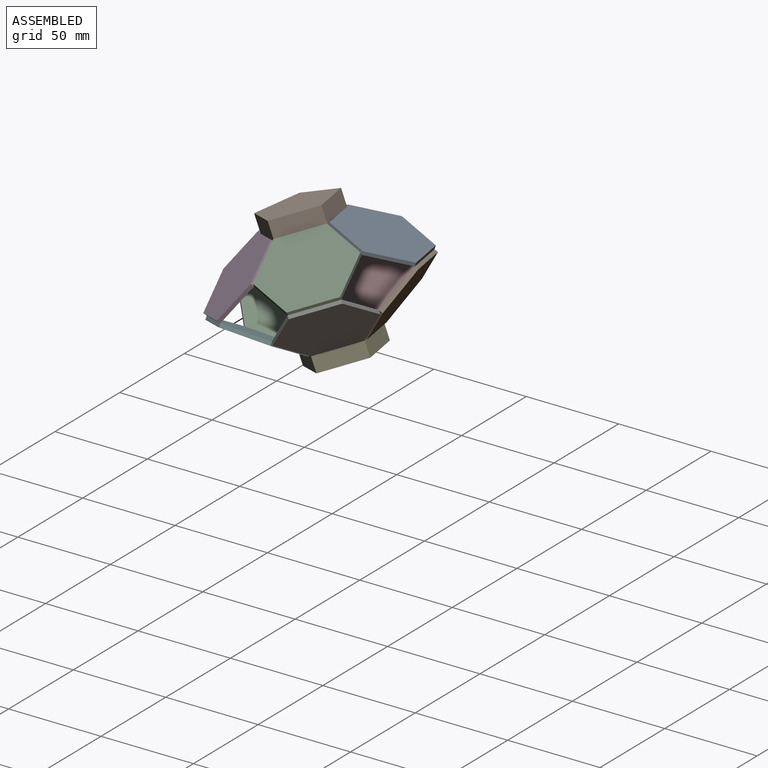
[diagram: assembled view]
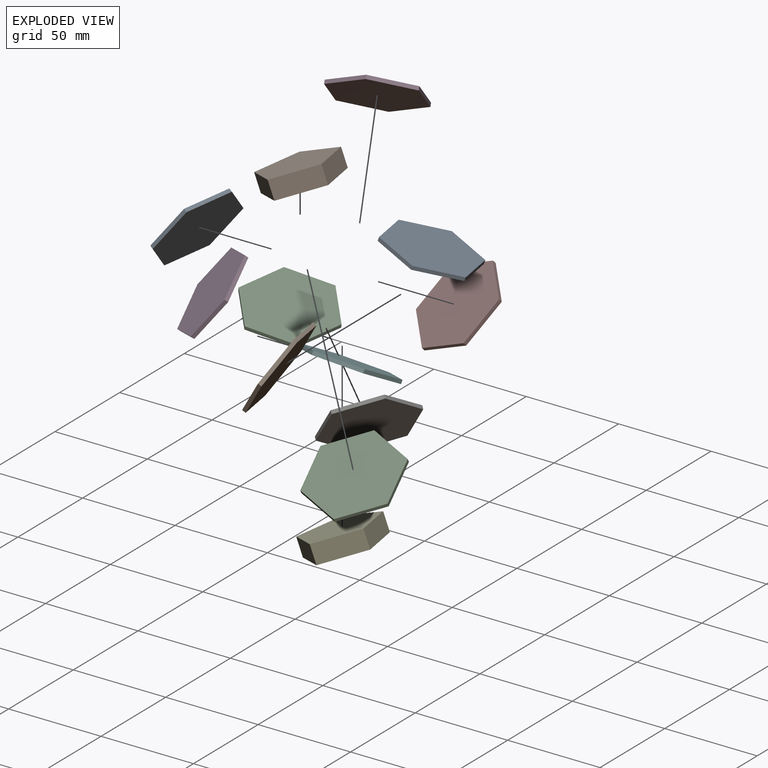
[diagram: exploded view]
GUIDED TOUR — MATED ASSEMBLY (Onshape document f35db0a1c7ccfeabc89d27fe, AutoMate assembly f35db0a1c7ccfeabc89d27fe_0e52c982a3482f39fbb780fa_8ddf06bdcfd4d379180f7259_default)

This assembly has 12 components, labeled P0..P11 below (a component is one placed occurrence of a part; the same part can appear more than once), held together by 13 mates. A mate is a constraint between two components; its type names the relative motion it leaves free:
  BALL — leaves all rotation about the listed point free (a ball joint),
  CYLINDRICAL — leaves both rotation about and translation along the listed axis free,
  REVOLUTE — leaves rotation about the listed axis free (a hinge).
Axis/direction vectors are unit vectors and 'through' points are millimeter coordinates, both in the assembly's world frame.

MATES
  1. BALL "Ball 1": P6 <-> P2, direction (-0.600, 0.505, 0.620) through (41.68, -43.90, -7.64) mm
  2. BALL "Ball 3": P11 <-> P5, direction (0.729, -0.623, 0.282) through (4.02, -42.10, -22.28) mm
  3. CYLINDRICAL "Cylindrical 4": P6 <-> P5, axis (0.225, 0.851, -0.475) through (30.69, -25.77, -33.02) mm
  4. REVOLUTE "Revolute 1": P1 <-> P3, axis (-0.931, 0.044, -0.362) through (16.01, 23.19, 10.73) mm
  5. BALL "Ball 4": P3 <-> P7, direction (-0.263, 0.605, 0.752) through (38.57, 57.06, -8.62) mm
  6. CYLINDRICAL "Cylindrical 7": P9 <-> P6, axis (-0.552, 0.300, -0.778) through (59.83, -5.10, -21.64) mm
  7. CYLINDRICAL "Cylindrical 3": P10 <-> P5, axis (-0.955, -0.228, 0.192) through (3.34, -2.41, -43.61) mm
  8. CYLINDRICAL "Cylindrical 8": P4 <-> P7, axis (0.931, -0.044, 0.362) through (35.07, 23.30, -38.26) mm
  9. CYLINDRICAL "Cylindrical 1": P10 <-> P4, axis (-0.326, -0.936, -0.129) through (19.35, 12.15, -44.40) mm
  10. CYLINDRICAL "Cylindrical 6": P9 <-> P4, axis (-0.249, 0.964, -0.095) through (49.82, 10.70, -32.55) mm
  11. BALL "Ball 2": P2 <-> P6, direction (-0.024, 0.508, -0.861) through (61.11, -30.11, -0.05) mm
  12. CYLINDRICAL "Cylindrical 5": P6 <-> P4, axis (0.777, 0.551, 0.304) through (43.22, -8.24, -35.16) mm
  13. CYLINDRICAL "Cylindrical 2": P5 <-> P4, axis (0.729, -0.623, 0.282) through (24.39, -7.35, -42.49) mm

ASSEMBLY ORDER
  1. P10 — the base component [order verified]
  2. P0 [order verified]
  3. P5 [order verified]
  4. P11 [order verified]
  5. P2 [order verified]
  6. P3 [order verified]
  7. P8 [order verified]
  8. P9 [order verified]
  9. P6 [order verified]
  10. P7 [order verified]
  11. P1 [order verified]
  12. P4 [order verified]
Order-tag legend:
  [order verified] — this step's position reverses a verified removal order: the component was checked to insert without passing through the ones already placed.

Of the 12 components, 12 carry the full construction recipe — the FeatureScript program that regenerates the part's solid from scratch; the rest are supplied as boundary geometry only.
Each toured component is shown spotlighted twice — in the assembled view, then in the exploded view, where a leader line traces a displaced component back to its assembled socket (saturated green if recipe-attached, orange if geometry-only; every other component desaturated gray) — followed by its recipe or geometry summary and the mates that hold it.
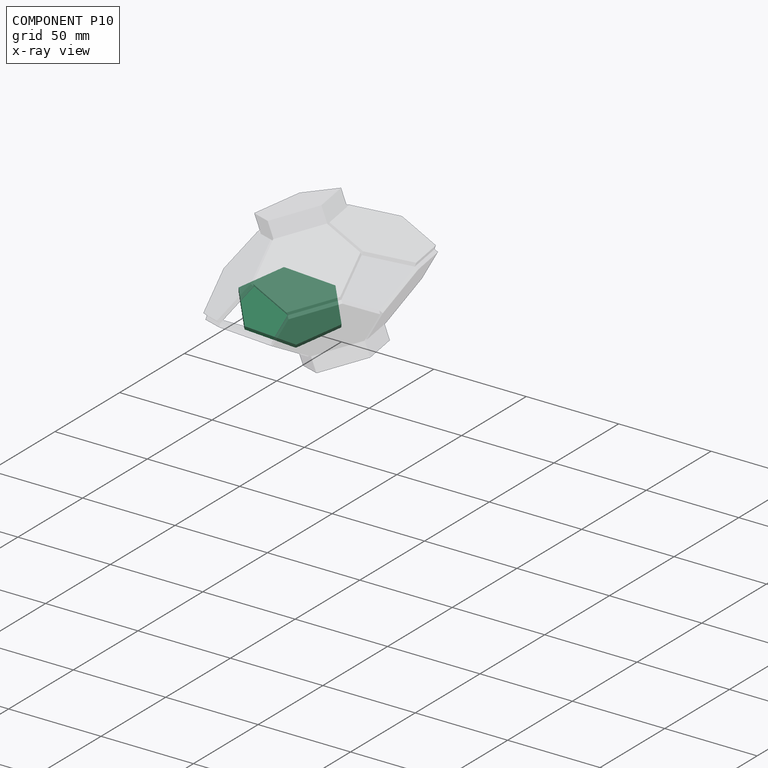
[diagram: component P10 — x-ray view]
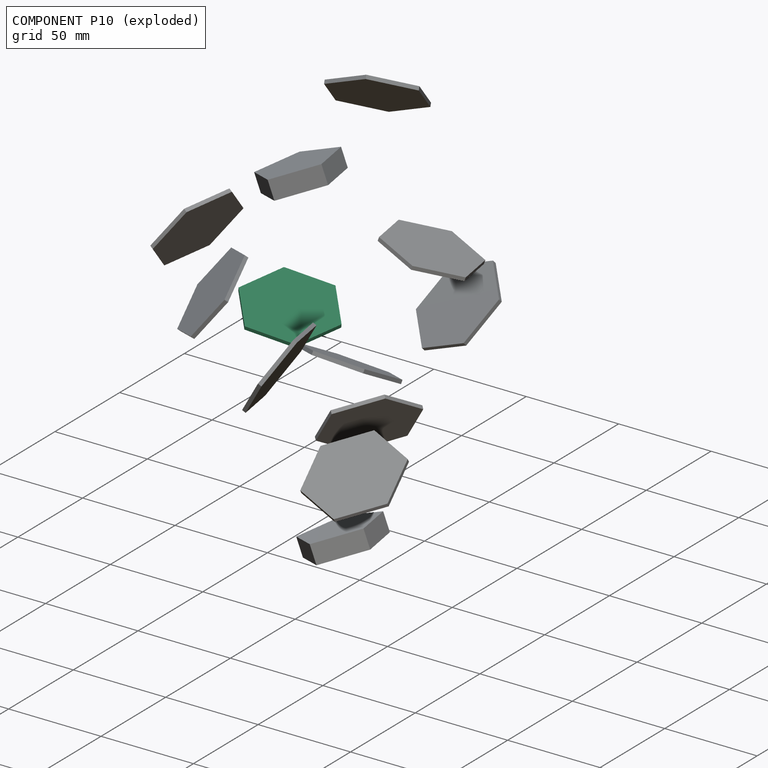
[diagram: component P10 — exploded]
COMPONENT P10 — same part as P0 (CADFS 00968637); its construction recipe is shown at P0.
Held by: CYLINDRICAL mate "Cylindrical 3" to P5; CYLINDRICAL mate "Cylindrical 1" to P4.
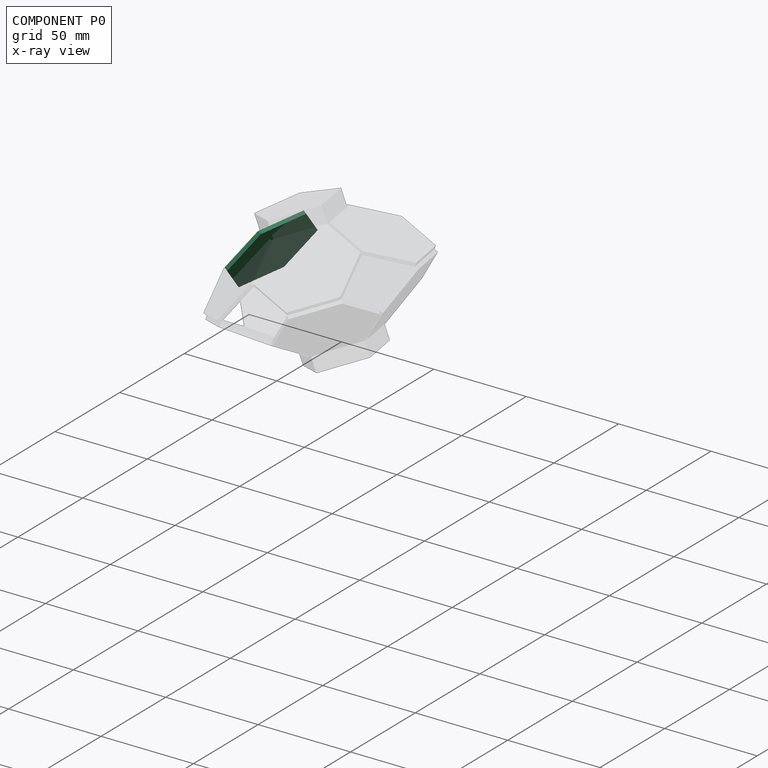
[diagram: component P0 — x-ray view]
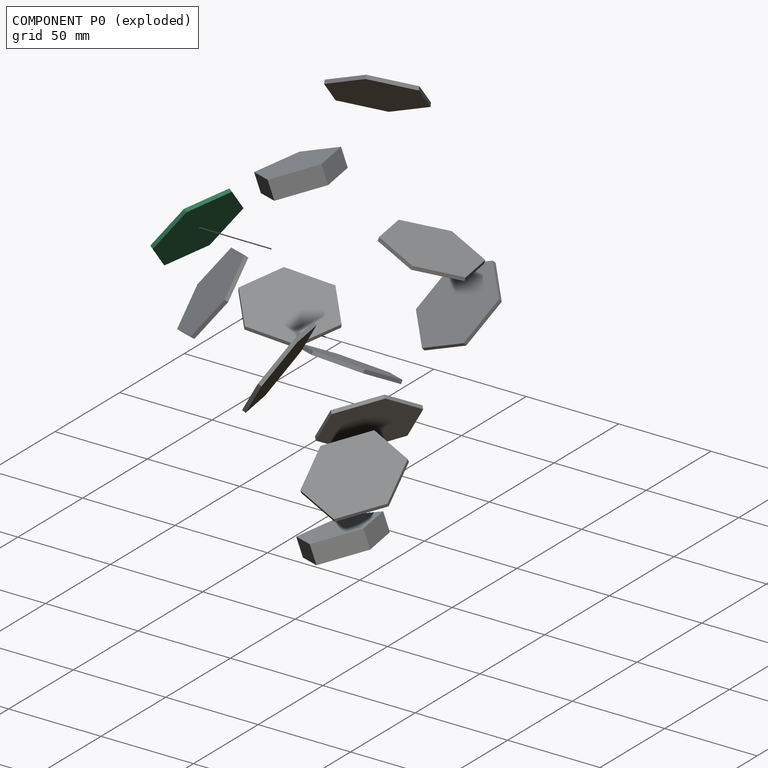
[diagram: component P0 — exploded]
COMPONENT P0 — recipe-attached (CADFS 00968637, mesh-verified: the recipe's output STEP matches this component's geometry to below the mesh-comparison resolution (tessellation chordal tolerance ~0.0993 mm)).
Held by: no mates (free).
Construction recipe (FeatureScript — the CAD program that rebuilds this solid; sketch coordinates are in the units given by the * unit suffixes, e.g. mm):

FeatureScript 1511;
import(path : "onshape/std/geometry.fs", version : "1511.0");
import(path : "onshape/std/common.fs", version : "1511.0");
const mm = millimeter;
const VERTEX = EntityType.VERTEX;
const EDGE = EntityType.EDGE;
const FACE = EntityType.FACE;
const BODY = EntityType.BODY;
function v(x, y){return vector(x, y);}
function OD(order){return orderDisambiguation(order);}
function OSD(set){return originalSetDisambiguation(set);}
function TD(topology){return topologyDisambiguation(topology);}
function TDD(query){return trueDependencyDisambiguation(query);}
function sQuery(a, b, c) {return sketchEntityQuery(a, b, c);}

annotation { "Feature Type Name" : "Feature", "Feature Type Description" : "" }
export const myFeature = defineFeature(function(context is Context, id is Id, definition is map)
    precondition{}
    {
        {
            var Q0;
            Q0=qCreatedBy(makeId("Top.planeOp"),FACE);
            var sketch = newSketch(context, id + "F0", { "sketchPlane" : qUnion([Q0])});
            skCircle(sketch, "E0.cCircle", {"center": v(0, 0) * mm, "radius": 25 * mm, "construction": true});
            skLineSegment(sketch, "E0.0", {"start": v(25, 0) * mm, "end": v(12.5, -21.65) * mm});
            skLineSegment(sketch, "E0.1", {"start": v(12.5, -21.65) * mm, "end": v(-12.5, -21.65) * mm});
            skLineSegment(sketch, "E0.2", {"start": v(-12.5, -21.65) * mm, "end": v(-25, 0) * mm});
            skLineSegment(sketch, "E0.3", {"start": v(-25, 0) * mm, "end": v(-12.5, 21.65) * mm});
            skLineSegment(sketch, "E0.4", {"start": v(-12.5, 21.65) * mm, "end": v(12.5, 21.65) * mm});
            skLineSegment(sketch, "E0.5", {"start": v(12.5, 21.65) * mm, "end": v(25, 0) * mm});
            skSolve(sketch);
        }
        {
            var Q0;
            Q0=makeQuery(id+"F0.imprint","IMPRINT",FACE,{"disambiguationData":[TD([[makeQuery(id+"F0.imprint","IMPRINT",EDGE,{"derivedFrom":sQuery(id+"F0.wireOp",EDGE,"E0.0")}),-1.0]])]});
            extrude(context, id + "F1", {"entities" : qUnion([Q0]), "depth" : 2 * mm, "offsetDistance" : 25 * mm});
        }
    });
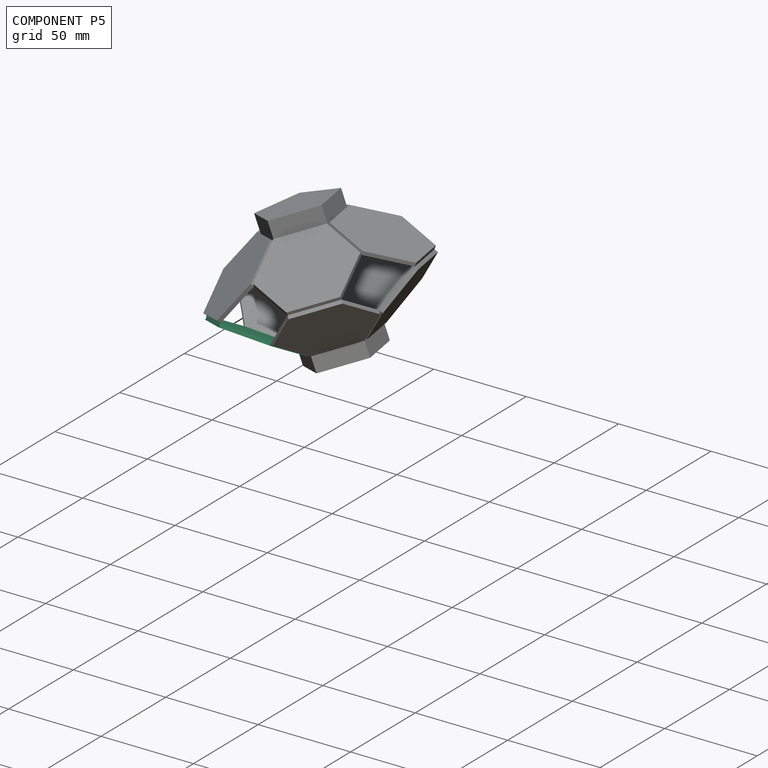
[diagram: component P5 — assembled]
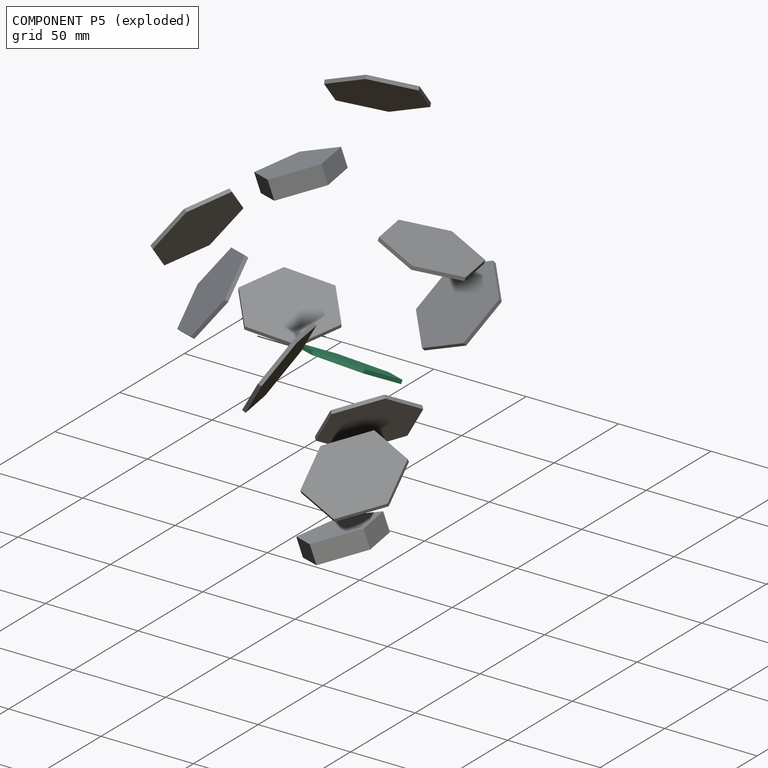
[diagram: component P5 — exploded]
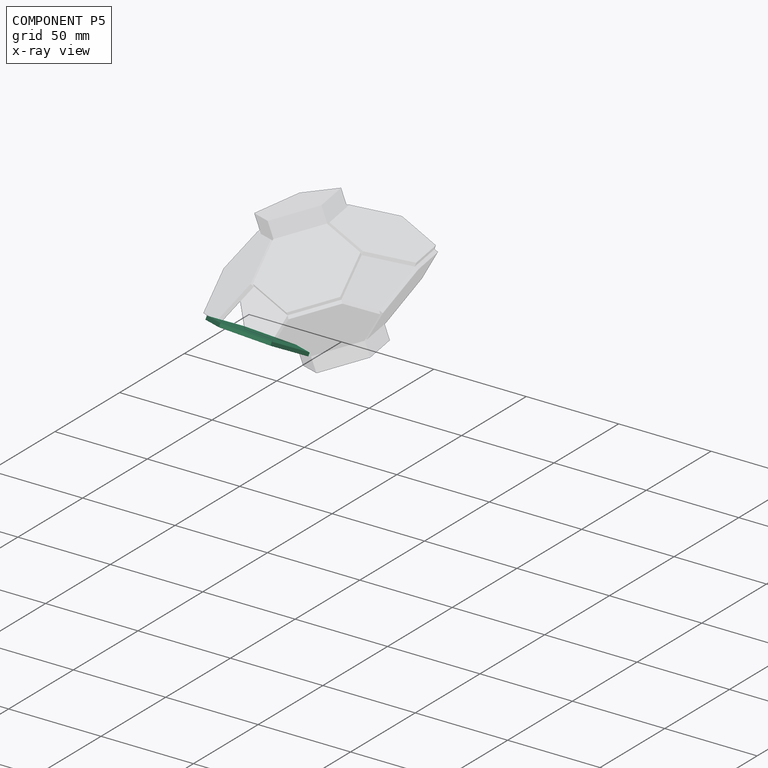
[diagram: component P5 — x-ray view]
COMPONENT P5 — same part as P0 (CADFS 00968637); its construction recipe is shown at P0.
Held by: BALL mate "Ball 3" to P11; CYLINDRICAL mate "Cylindrical 4" to P6; CYLINDRICAL mate "Cylindrical 3" to P10; CYLINDRICAL mate "Cylindrical 2" to P4.
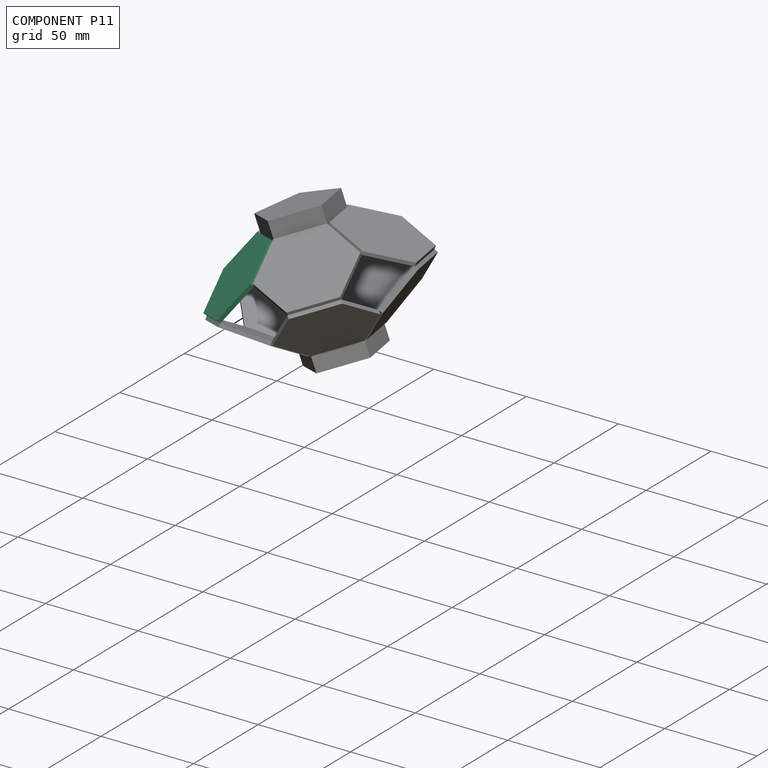
[diagram: component P11 — assembled]
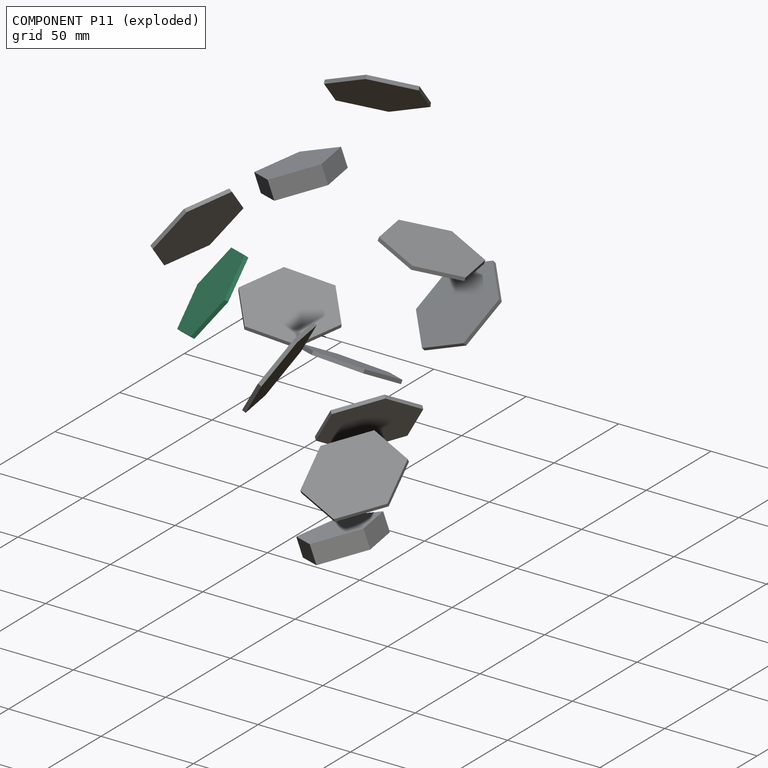
[diagram: component P11 — exploded]
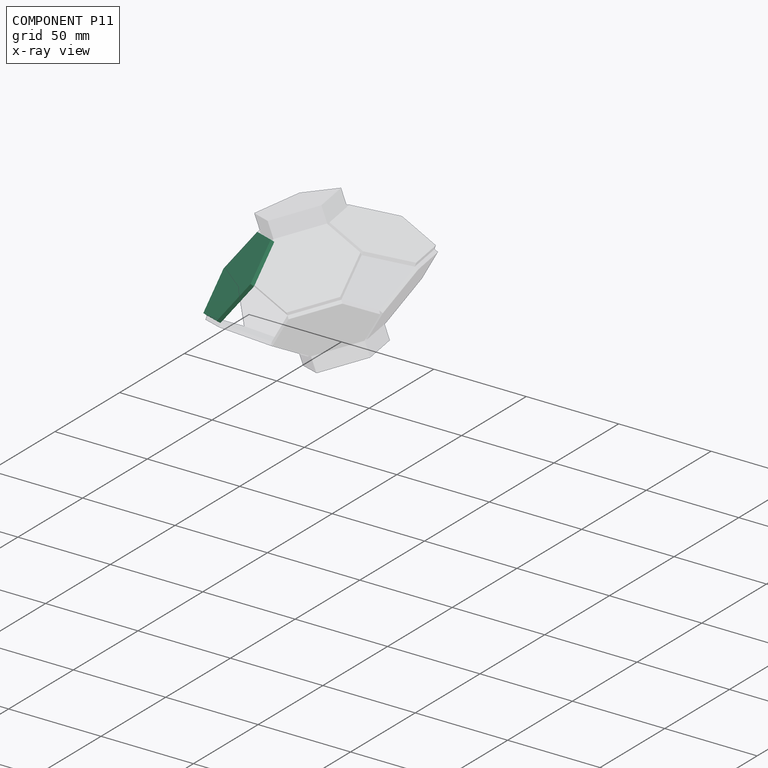
[diagram: component P11 — x-ray view]
COMPONENT P11 — same part as P0 (CADFS 00968637); its construction recipe is shown at P0.
Held by: BALL mate "Ball 3" to P5.
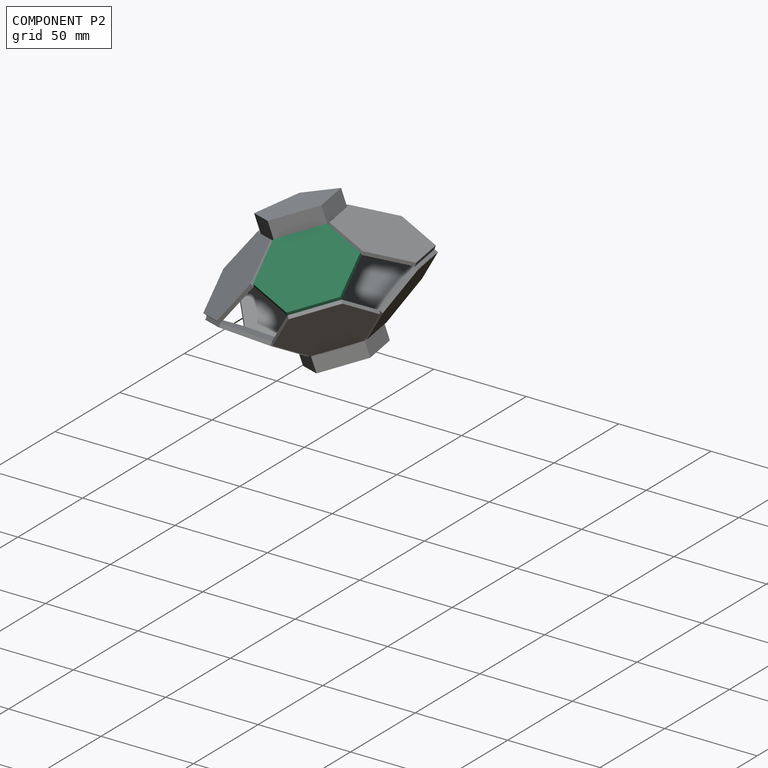
[diagram: component P2 — assembled]
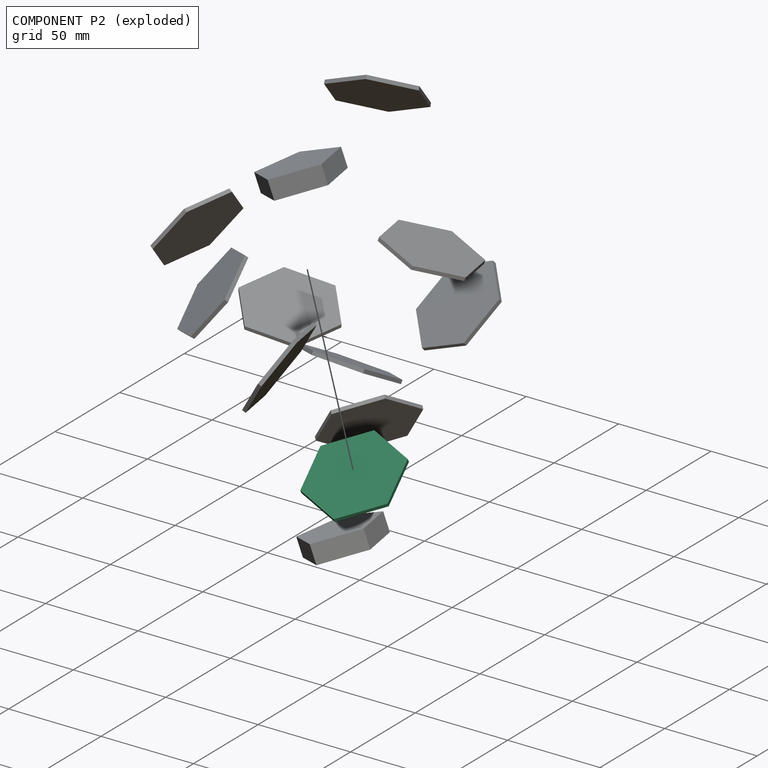
[diagram: component P2 — exploded]
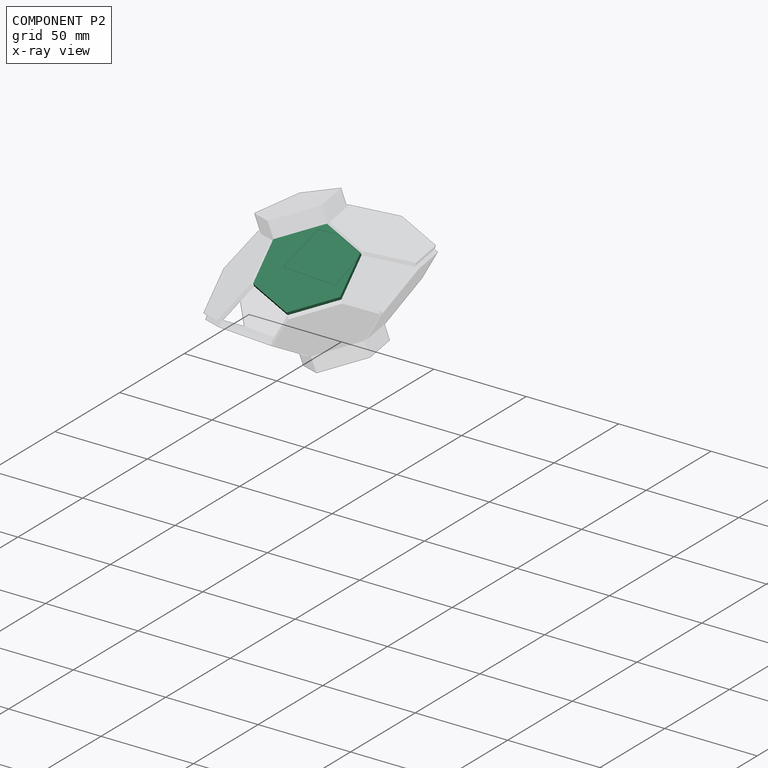
[diagram: component P2 — x-ray view]
COMPONENT P2 — same part as P0 (CADFS 00968637); its construction recipe is shown at P0.
Held by: BALL mate "Ball 1" to P6; BALL mate "Ball 2" to P6.
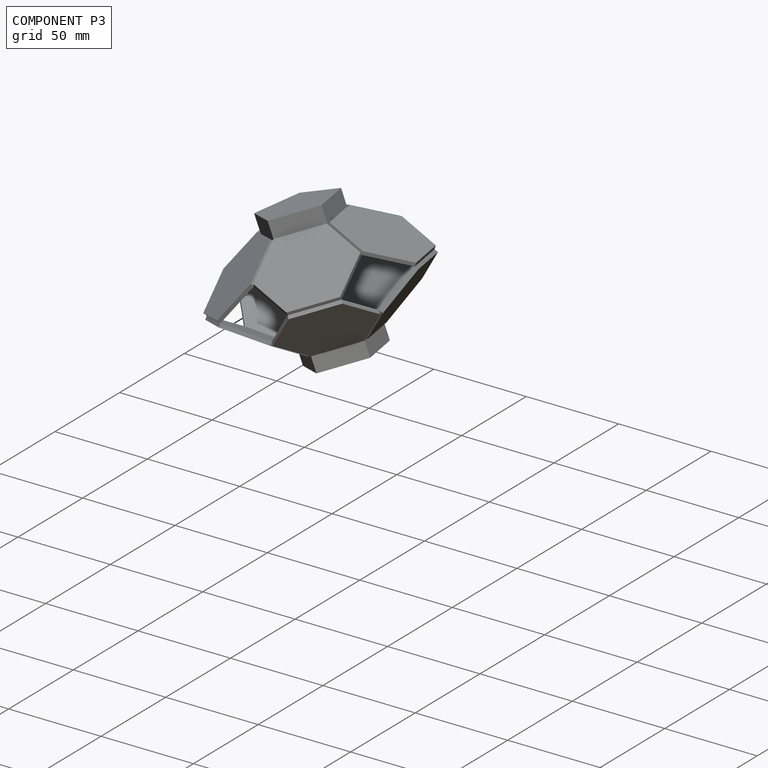
[diagram: component P3 — assembled]
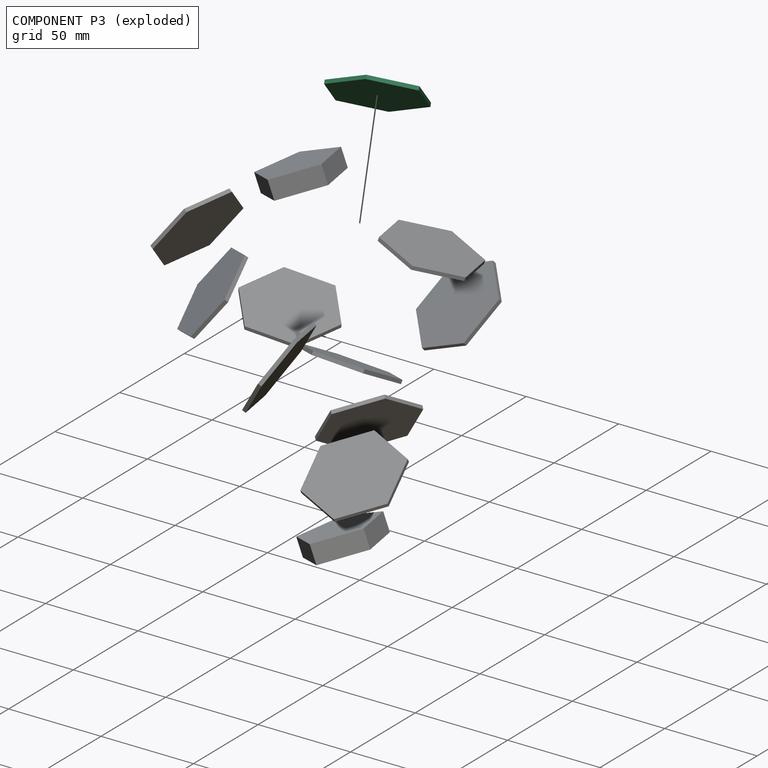
[diagram: component P3 — exploded]
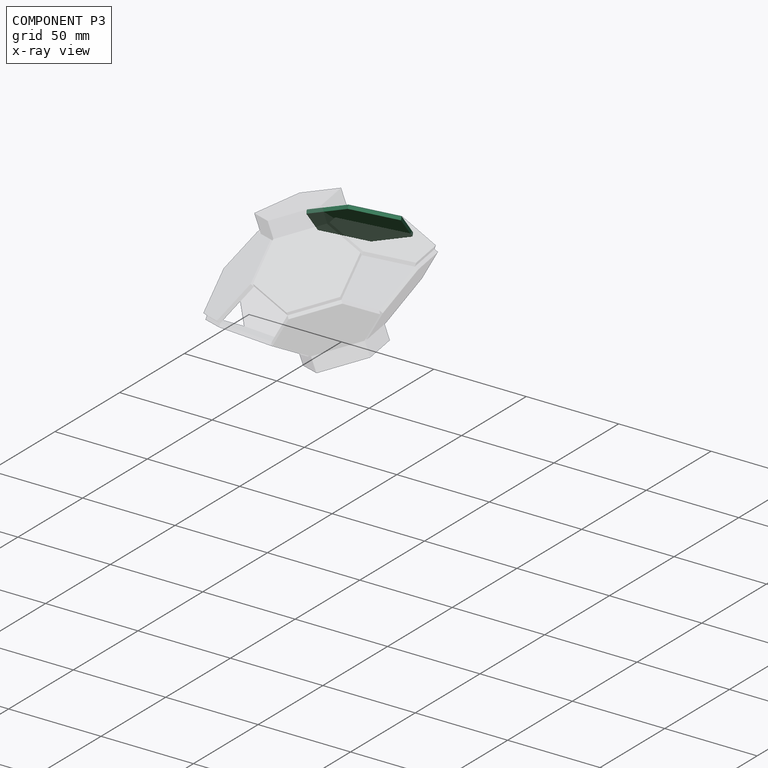
[diagram: component P3 — x-ray view]
COMPONENT P3 — same part as P0 (CADFS 00968637); its construction recipe is shown at P0.
Held by: REVOLUTE mate "Revolute 1" to P1; BALL mate "Ball 4" to P7.
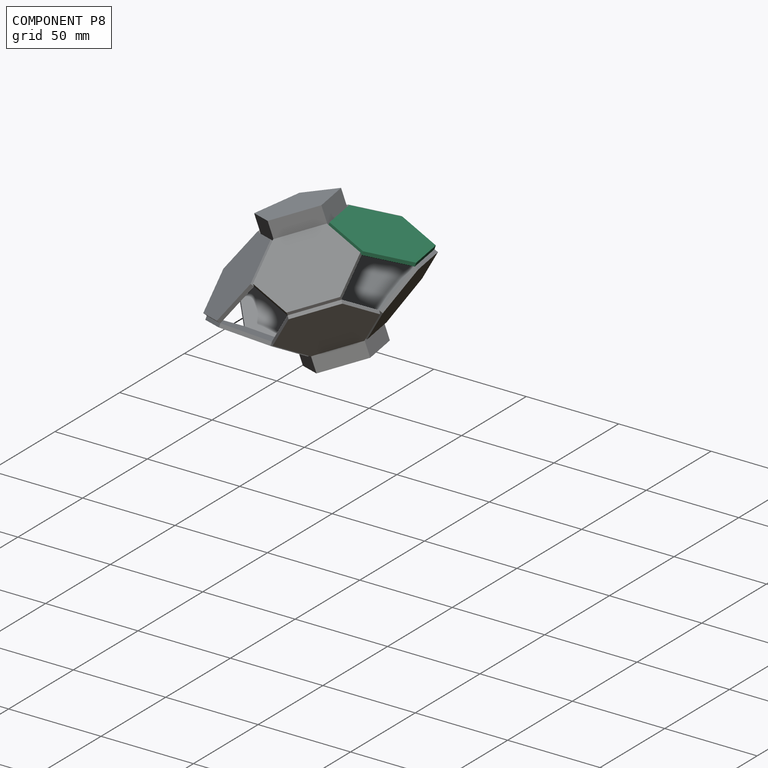
[diagram: component P8 — assembled]
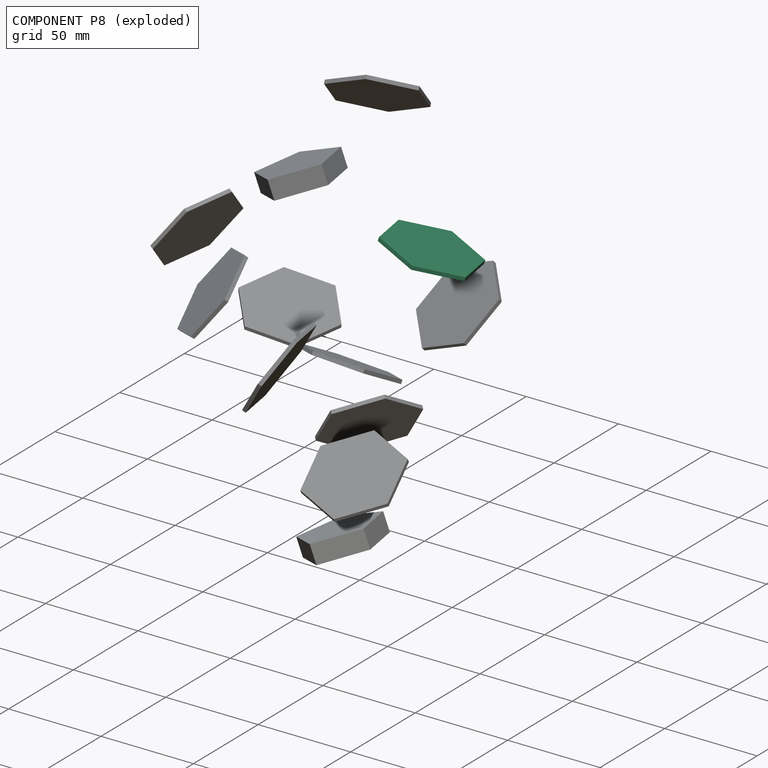
[diagram: component P8 — exploded]
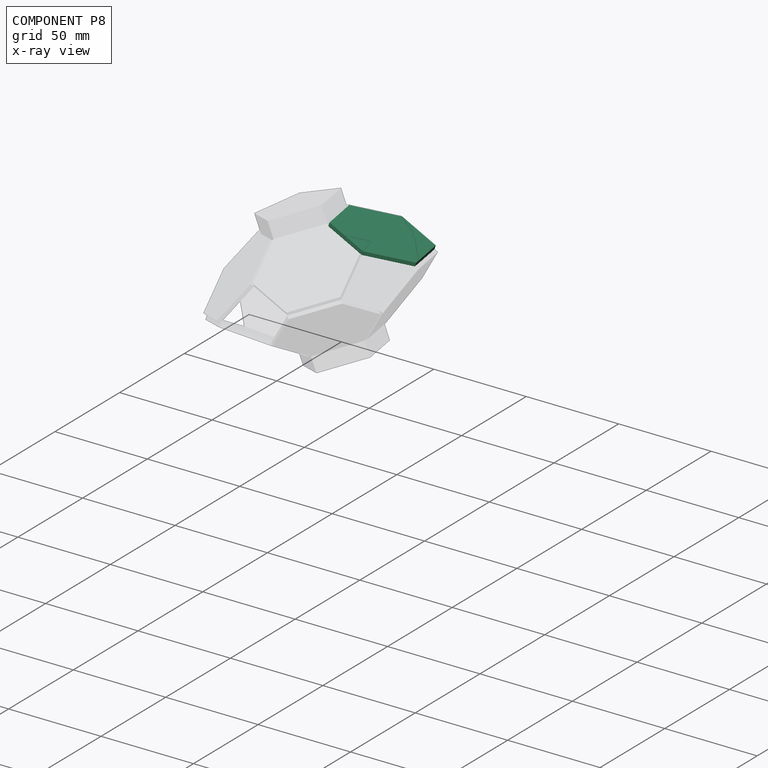
[diagram: component P8 — x-ray view]
COMPONENT P8 — same part as P0 (CADFS 00968637); its construction recipe is shown at P0.
Held by: no mates (free).
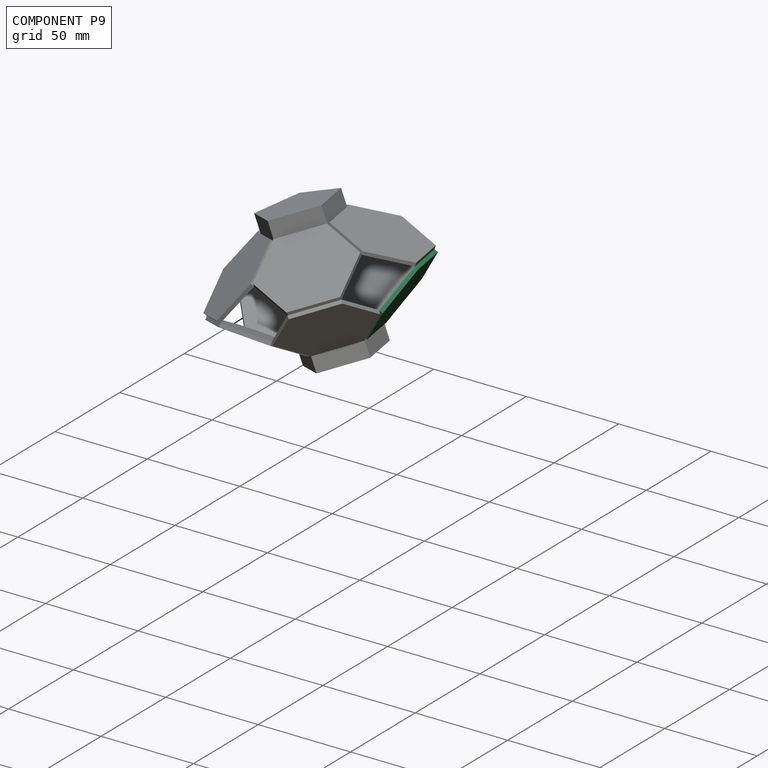
[diagram: component P9 — assembled]
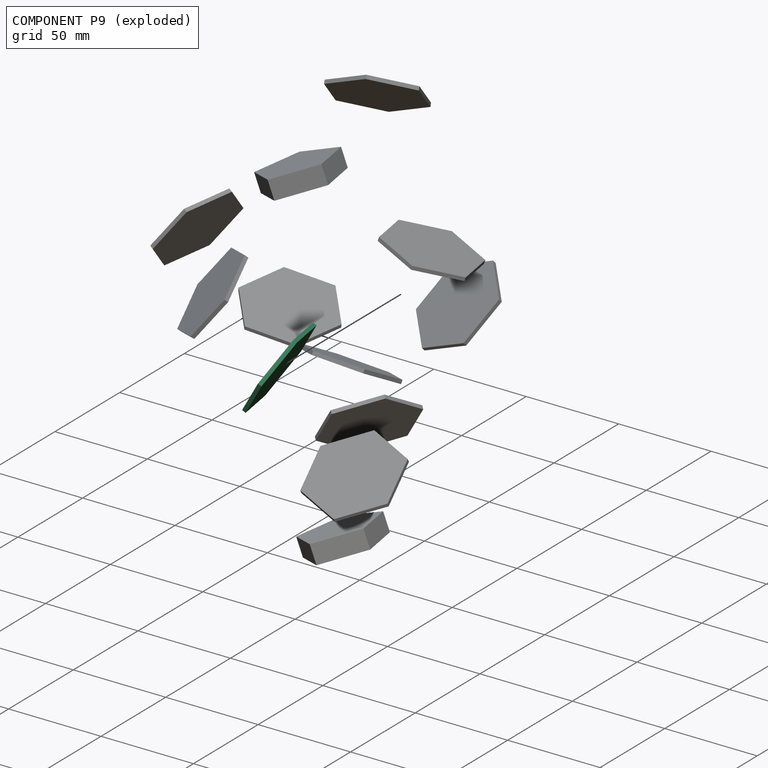
[diagram: component P9 — exploded]
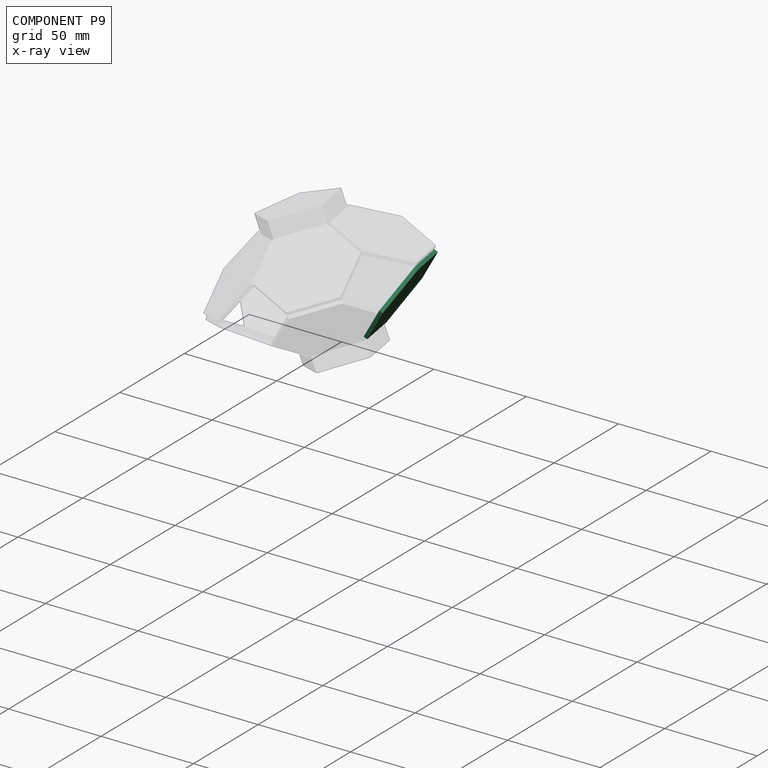
[diagram: component P9 — x-ray view]
COMPONENT P9 — same part as P0 (CADFS 00968637); its construction recipe is shown at P0.
Held by: CYLINDRICAL mate "Cylindrical 7" to P6; CYLINDRICAL mate "Cylindrical 6" to P4.
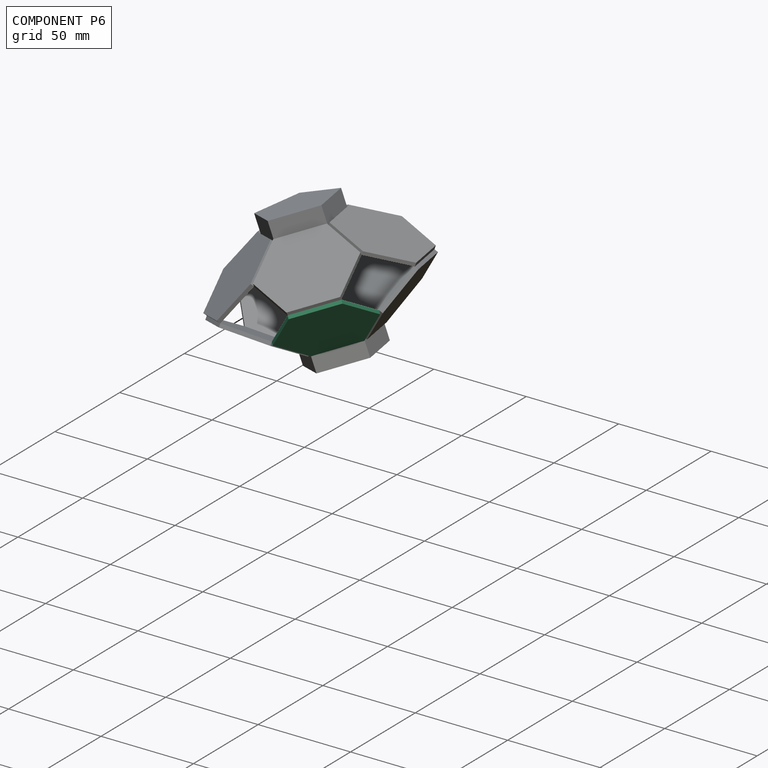
[diagram: component P6 — assembled]
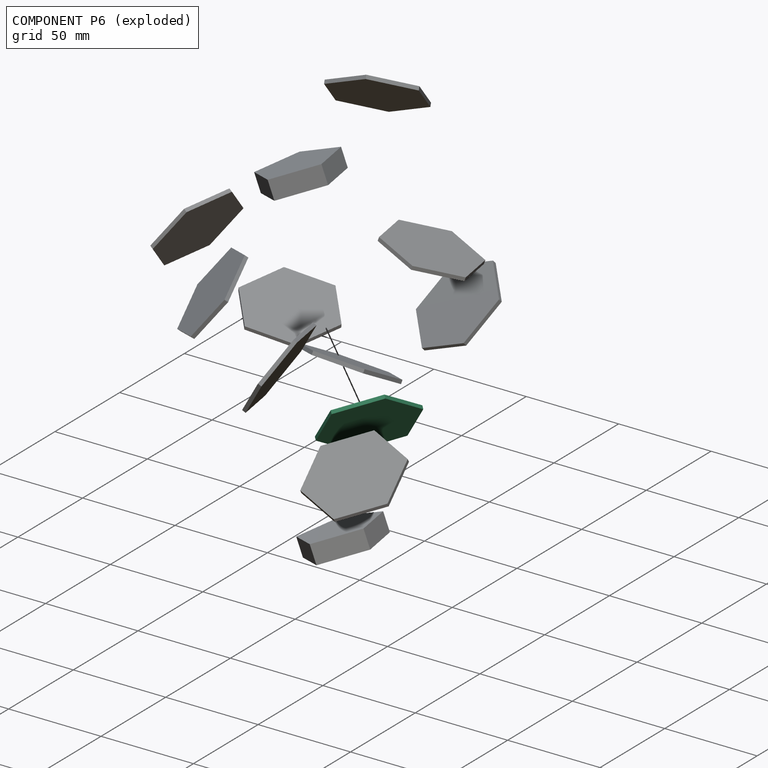
[diagram: component P6 — exploded]
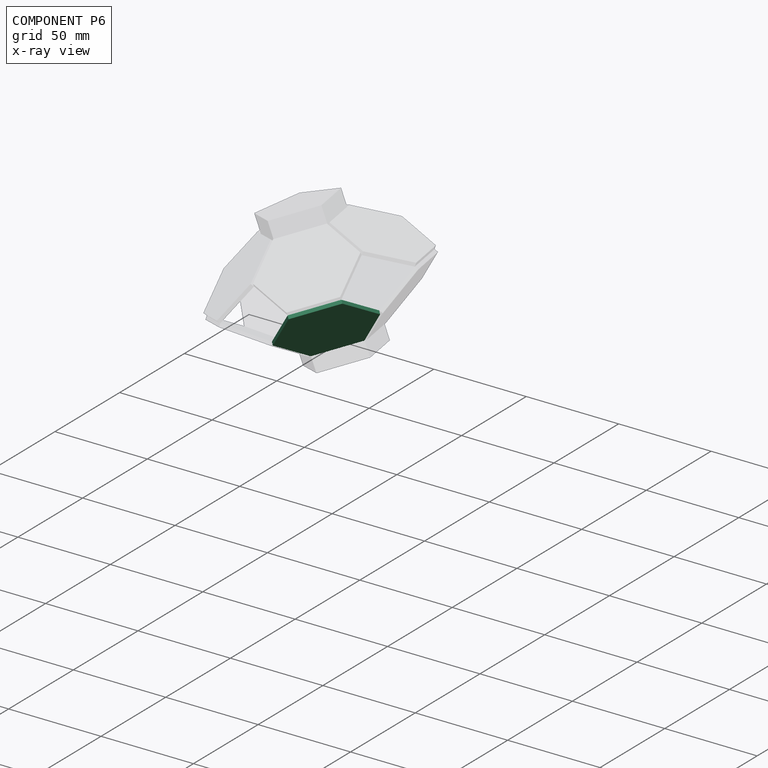
[diagram: component P6 — x-ray view]
COMPONENT P6 — same part as P0 (CADFS 00968637); its construction recipe is shown at P0.
Held by: BALL mate "Ball 1" to P2; CYLINDRICAL mate "Cylindrical 4" to P5; CYLINDRICAL mate "Cylindrical 7" to P9; BALL mate "Ball 2" to P2; CYLINDRICAL mate "Cylindrical 5" to P4.
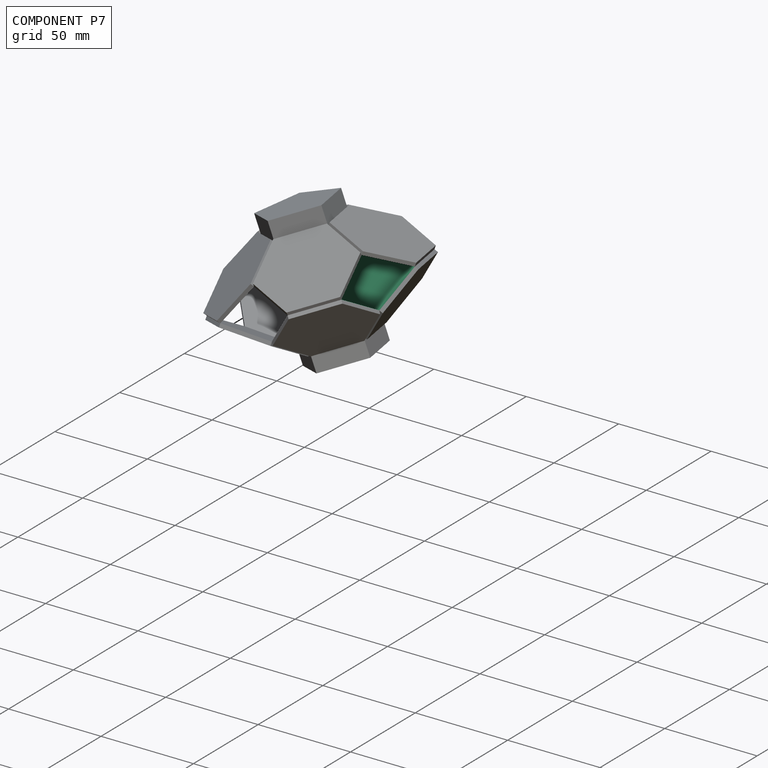
[diagram: component P7 — assembled]
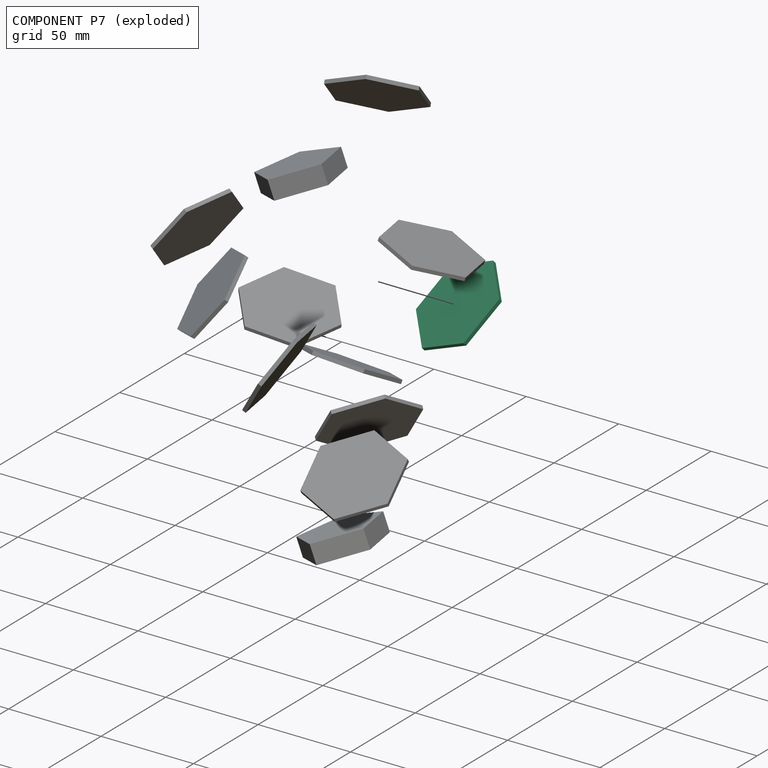
[diagram: component P7 — exploded]
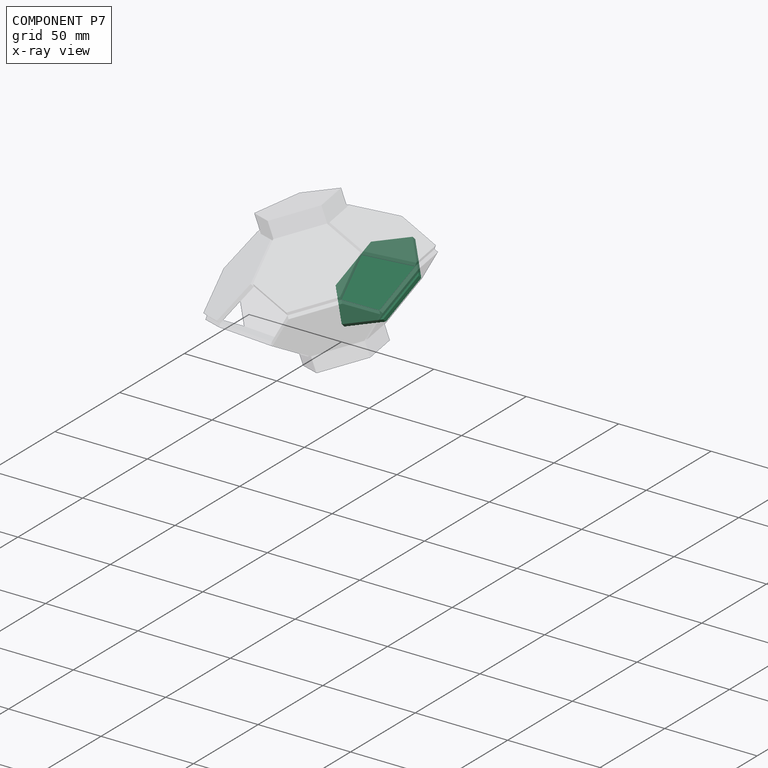
[diagram: component P7 — x-ray view]
COMPONENT P7 — same part as P0 (CADFS 00968637); its construction recipe is shown at P0.
Held by: BALL mate "Ball 4" to P3; CYLINDRICAL mate "Cylindrical 8" to P4.
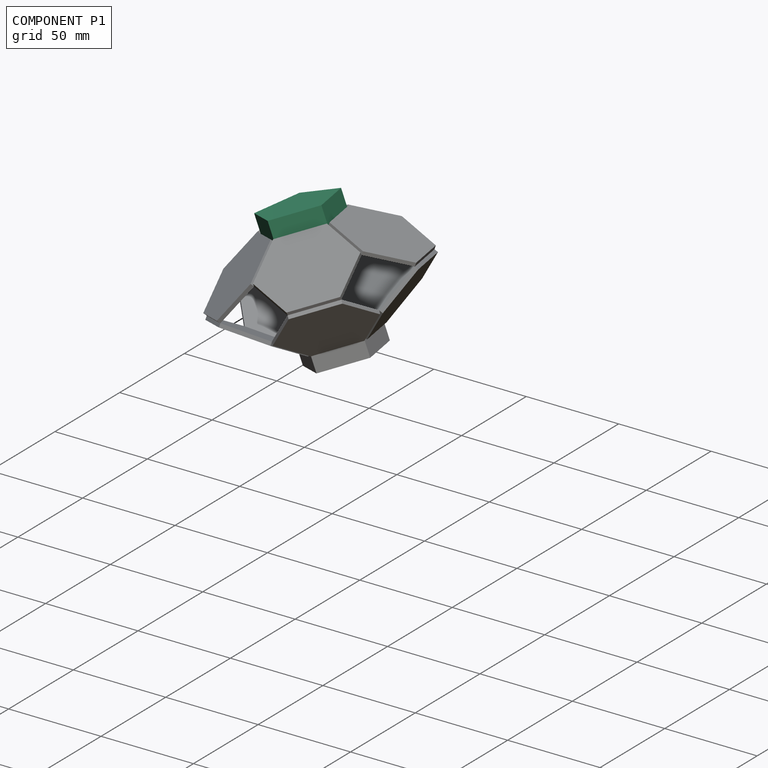
[diagram: component P1 — assembled]
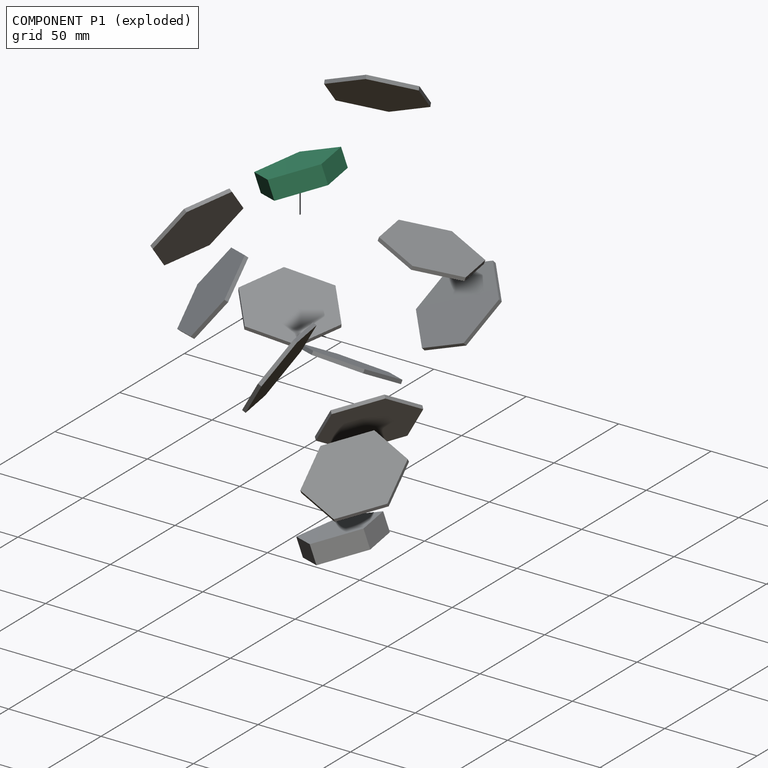
[diagram: component P1 — exploded]
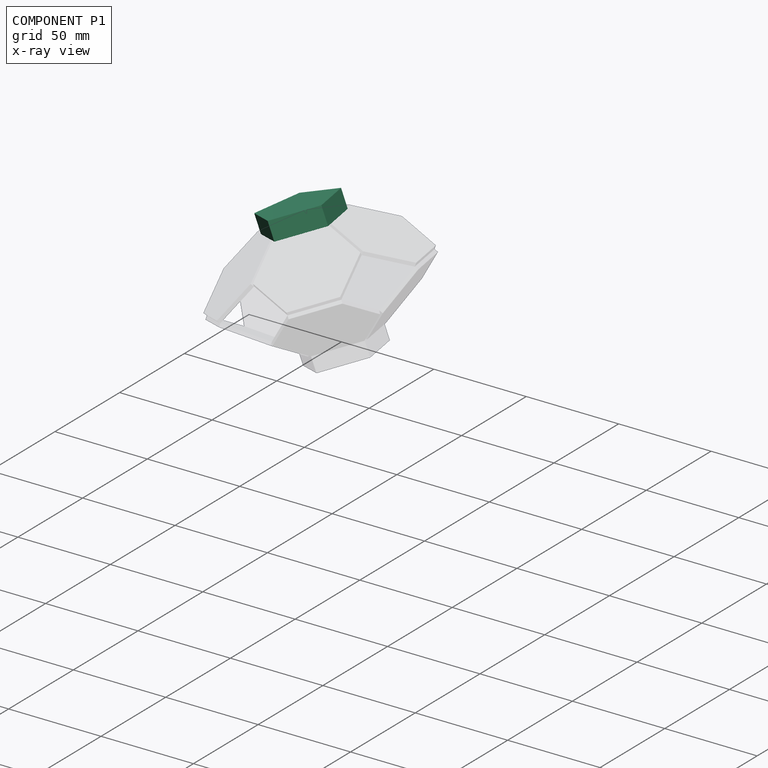
[diagram: component P1 — x-ray view]
COMPONENT P1 — recipe-attached (CADFS 00937500, mesh-verified: the recipe's output STEP matches this component's geometry to below the mesh-comparison resolution (tessellation chordal tolerance ~0.0854 mm)).
Held by: REVOLUTE mate "Revolute 1" to P3.
Construction recipe (FeatureScript — the CAD program that rebuilds this solid; sketch coordinates are in the units given by the * unit suffixes, e.g. mm):

FeatureScript 1511;
import(path : "onshape/std/geometry.fs", version : "1511.0");
import(path : "onshape/std/common.fs", version : "1511.0");
const mm = millimeter;
const VERTEX = EntityType.VERTEX;
const EDGE = EntityType.EDGE;
const FACE = EntityType.FACE;
const BODY = EntityType.BODY;
function v(x, y){return vector(x, y);}
function OD(order){return orderDisambiguation(order);}
function OSD(set){return originalSetDisambiguation(set);}
function TD(topology){return topologyDisambiguation(topology);}
function TDD(query){return trueDependencyDisambiguation(query);}
function sQuery(a, b, c) {return sketchEntityQuery(a, b, c);}

annotation { "Feature Type Name" : "Feature", "Feature Type Description" : "" }
export const myFeature = defineFeature(function(context is Context, id is Id, definition is map)
    precondition{}
    {
        {
            var Q0;
            Q0=qCreatedBy(makeId("Top.planeOp"),FACE);
            var sketch = newSketch(context, id + "F0", { "sketchPlane" : qUnion([Q0])});
            skCircle(sketch, "E0.cCircle", {"center": v(0, 0) * mm, "radius": 17.2 * mm, "construction": true});
            skLineSegment(sketch, "E0.0", {"start": v(20.03, -7.15) * mm, "end": v(-0.6, -21.26) * mm});
            skLineSegment(sketch, "E0.1", {"start": v(-0.6, -21.26) * mm, "end": v(-20.4, -6) * mm});
            skLineSegment(sketch, "E0.2", {"start": v(-20.4, -6) * mm, "end": v(-12, 17.56) * mm});
            skLineSegment(sketch, "E0.3", {"start": v(-12, 17.56) * mm, "end": v(12.99, 16.84) * mm});
            skLineSegment(sketch, "E0.4", {"start": v(12.99, 16.84) * mm, "end": v(20.03, -7.15) * mm});
            skPoint(sketch, "E0.0.midPoint", {"position": v(9.71, -14.2) * mm});
            skSolve(sketch);
        }
        {
            var Q0;
            Q0=makeQuery(id+"F0.imprint","IMPRINT",FACE,{"disambiguationData":[TD([[makeQuery(id+"F0.imprint","IMPRINT",EDGE,{"derivedFrom":sQuery(id+"F0.wireOp",EDGE,"E0.0")}),-1.0]])]});
            extrude(context, id + "F1", {"entities" : qUnion([Q0]), "depth" : 10 * mm, "offsetDistance" : 25 * mm});
        }
    });
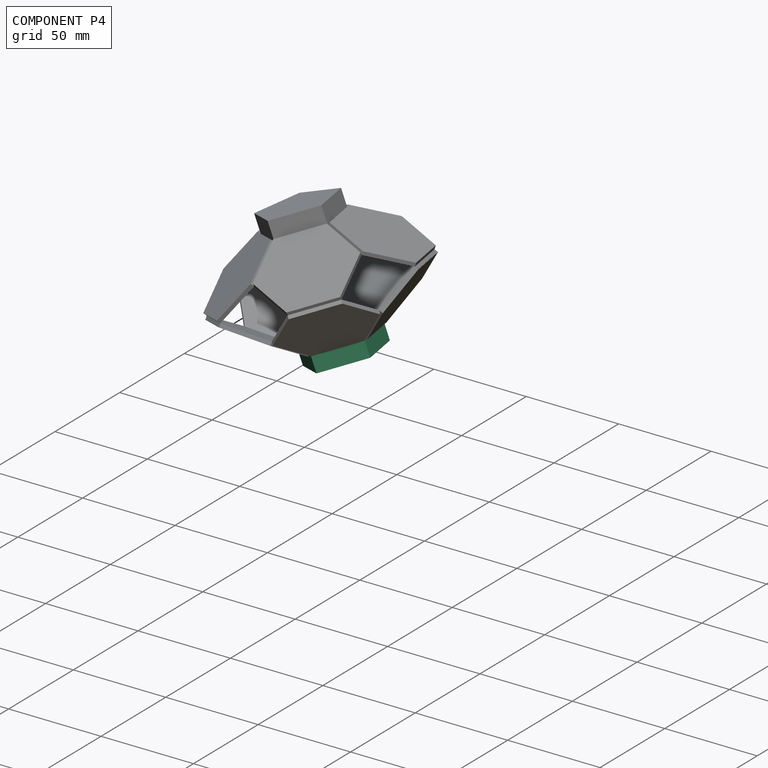
[diagram: component P4 — assembled]
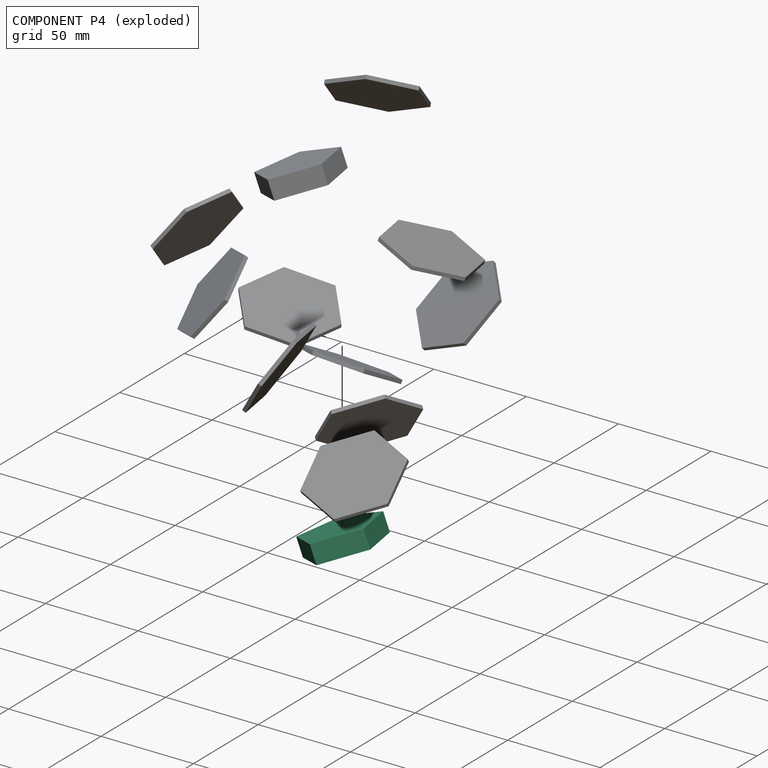
[diagram: component P4 — exploded]
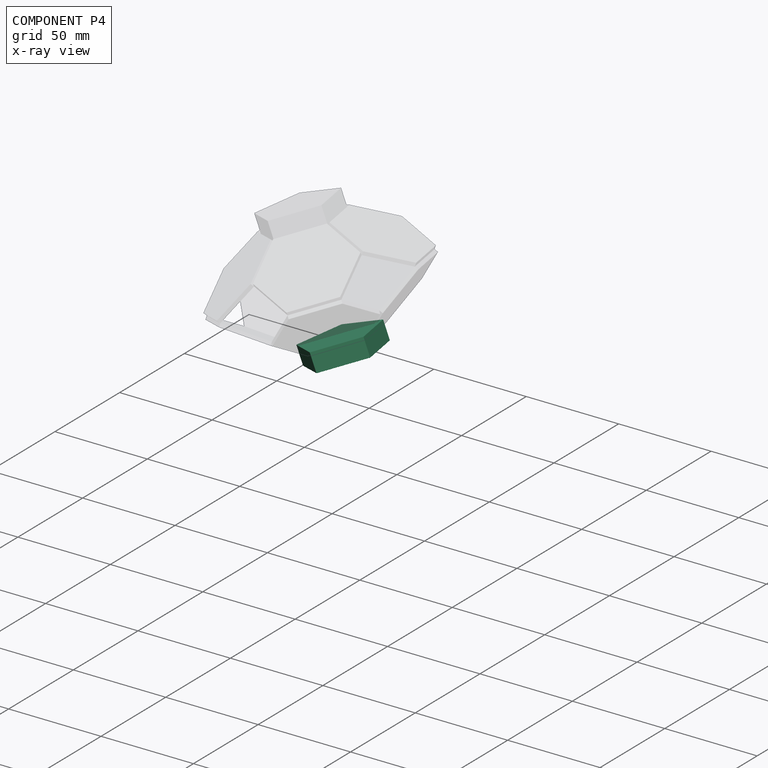
[diagram: component P4 — x-ray view]
COMPONENT P4 — same part as P1 (CADFS 00937500); its construction recipe is shown at P1.
Held by: CYLINDRICAL mate "Cylindrical 8" to P7; CYLINDRICAL mate "Cylindrical 1" to P10; CYLINDRICAL mate "Cylindrical 6" to P9; CYLINDRICAL mate "Cylindrical 5" to P6; CYLINDRICAL mate "Cylindrical 2" to P5.
PROVENANCE & LICENSES
Assembly (occurrences, transforms, mates, per-part STEP geometry): AutoMate dataset, Zenodo record 7776208, CC0.
Construction recipes: CADFS (HuggingFace VladPyatov/CADFS, CC-BY-4.0, layered over the ABC dataset), FeatureScript reconstruction programs keyed by ABC model id.
Join: ABC meta listings map ABC model id -> Onshape documentId; within a shared document, parts are matched by geometric signature (bounding-box dims + volume at 0.1% relative tolerance, exact B-rep face/solid counts).
Verification: 12 of this assembly's 12 components carry a recipe attachment, and every attachment is mesh-verified: the CADFS STEP and the AutoMate member STEP were compared as meshes in their shared local frame (symmetric sampled-point-to-mesh distance); worst across the 12 attachments: below the mesh-comparison resolution (tessellation chordal tolerance ~0.0993 mm) on a 66 mm part.
Renders: orthographic iso camera (az 35 / el 25); the floor grid conveys scale (grid pitch printed in each image; no ruler). In the exploded view each component is displaced by its stored offset vector: the offsets alone carry the explosion direction (mate normal/axis signs are not orientation cues and do not encode it), and separation distances are assigned per mate-chain, not proportionally to assembly-order depth.
